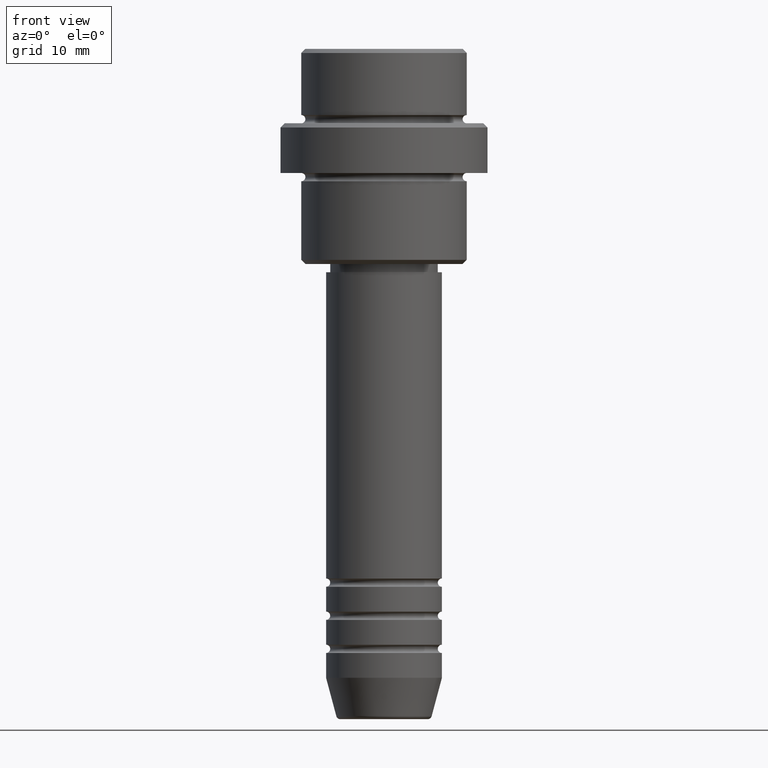
[diagram: clean part render]
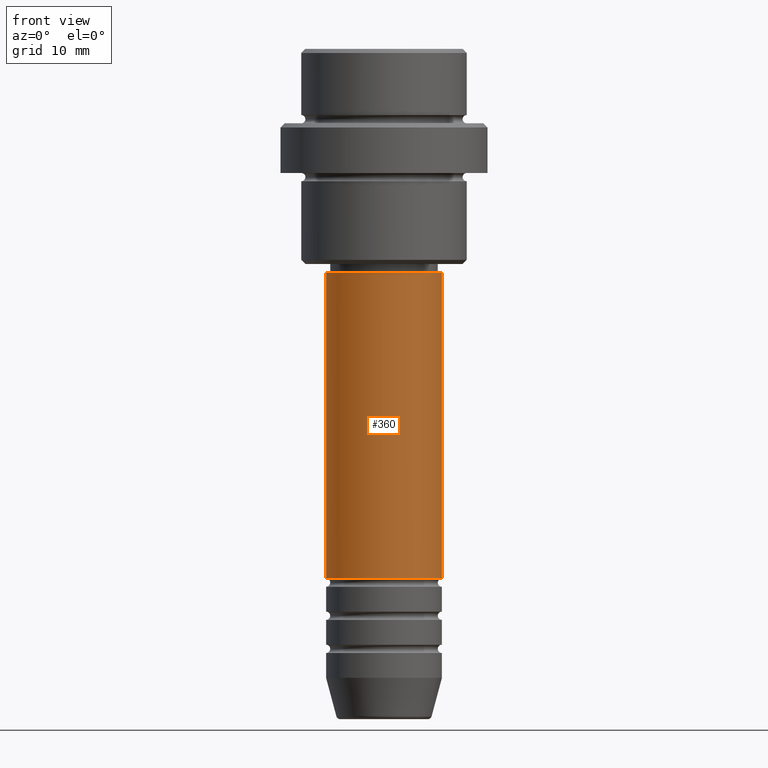
[diagram: same view with one face highlighted and labeled with its STEP entity id]
A machine part, front view. The second image highlights one B-rep face of the part: STEP entity #360.
In plain terms, the highlighted cylindrical surface (partial cylindrical patch) has radius 7 mm, axis along (-0, -0, 1).
Its self-contained STEP definition (entity closure, byte-faithful):
#26 = VERTEX_POINT ( 'NONE', #453 ) ;
#79 = EDGE_CURVE ( 'NONE', #301, #1287, #264, .T. ) ;
#128 = CYLINDRICAL_SURFACE ( 'NONE', #1296, 7.000000000000000000 ) ;
#264 = CIRCLE ( 'NONE', #1292, 7.000000000000000000 ) ;
#301 = VERTEX_POINT ( 'NONE', #306 ) ;
#306 = CARTESIAN_POINT ( 'NONE',  ( -7.000000000000000000, 8.572527594031473190E-16, -63.99999999999989342 ) ) ;
#346 = CARTESIAN_POINT ( 'NONE',  ( 0.000000000000000000, 0.000000000000000000, 0.000000000000000000 ) ) ;
#360 = ADVANCED_FACE ( 'NONE', ( #435 ), #128, .T. ) ;
#407 = LINE ( 'NONE', #1041, #718 ) ;
#435 = FACE_OUTER_BOUND ( 'NONE', #800, .T. ) ;
#437 = VERTEX_POINT ( 'NONE', #894 ) ;
#453 = CARTESIAN_POINT ( 'NONE',  ( 7.000000000000000000, 0.000000000000000000, -27.00000000000000355 ) ) ;
#497 = DIRECTION ( 'NONE',  ( -0.000000000000000000, -0.000000000000000000, 1.000000000000000000 ) ) ;
#668 = EDGE_CURVE ( 'NONE', #437, #26, #946, .T. ) ;
#718 = VECTOR ( 'NONE', #1163, 1000.000000000000000 ) ;
#768 = EDGE_CURVE ( 'NONE', #1287, #26, #1103, .T. ) ;
#775 = DIRECTION ( 'NONE',  ( -0.000000000000000000, -0.000000000000000000, 1.000000000000000000 ) ) ;
#792 = ORIENTED_EDGE ( 'NONE', *, *, #768, .T. ) ;
#798 = DIRECTION ( 'NONE',  ( 1.000000000000000000, 0.000000000000000000, 0.000000000000000000 ) ) ;
#800 = EDGE_LOOP ( 'NONE', ( #895, #1080, #792, #1246 ) ) ;
#894 = CARTESIAN_POINT ( 'NONE',  ( -7.000000000000000000, 8.572527594031473190E-16, -27.00000000000000355 ) ) ;
#895 = ORIENTED_EDGE ( 'NONE', *, *, #1125, .F. ) ;
#946 = CIRCLE ( 'NONE', #1288, 7.000000000000000000 ) ;
#975 = CARTESIAN_POINT ( 'NONE',  ( 7.000000000000000000, 0.000000000000000000, -63.99999999999989342 ) ) ;
#996 = DIRECTION ( 'NONE',  ( -0.000000000000000000, -0.000000000000000000, 1.000000000000000000 ) ) ;
#1041 = CARTESIAN_POINT ( 'NONE',  ( -7.000000000000000000, 8.572527594031473190E-16, 0.000000000000000000 ) ) ;
#1080 = ORIENTED_EDGE ( 'NONE', *, *, #79, .T. ) ;
#1089 = DIRECTION ( 'NONE',  ( 1.000000000000000000, 0.000000000000000000, 0.000000000000000000 ) ) ;
#1103 = LINE ( 'NONE', #1405, #1221 ) ;
#1125 = EDGE_CURVE ( 'NONE', #301, #437, #407, .T. ) ;
#1163 = DIRECTION ( 'NONE',  ( -0.000000000000000000, -0.000000000000000000, 1.000000000000000000 ) ) ;
#1187 = DIRECTION ( 'NONE',  ( 1.000000000000000000, 0.000000000000000000, 0.000000000000000000 ) ) ;
#1221 = VECTOR ( 'NONE', #996, 1000.000000000000000 ) ;
#1246 = ORIENTED_EDGE ( 'NONE', *, *, #668, .F. ) ;
#1287 = VERTEX_POINT ( 'NONE', #975 ) ;
#1288 = AXIS2_PLACEMENT_3D ( 'NONE', #1390, #1371, #1187 ) ;
#1292 = AXIS2_PLACEMENT_3D ( 'NONE', #1344, #497, #798 ) ;
#1296 = AXIS2_PLACEMENT_3D ( 'NONE', #346, #775, #1089 ) ;
#1344 = CARTESIAN_POINT ( 'NONE',  ( 0.000000000000000000, 0.000000000000000000, -63.99999999999989342 ) ) ;
#1371 = DIRECTION ( 'NONE',  ( -0.000000000000000000, -0.000000000000000000, 1.000000000000000000 ) ) ;
#1390 = CARTESIAN_POINT ( 'NONE',  ( 0.000000000000000000, 0.000000000000000000, -27.00000000000000355 ) ) ;
#1405 = CARTESIAN_POINT ( 'NONE',  ( 7.000000000000000000, 0.000000000000000000, 0.000000000000000000 ) ) ;